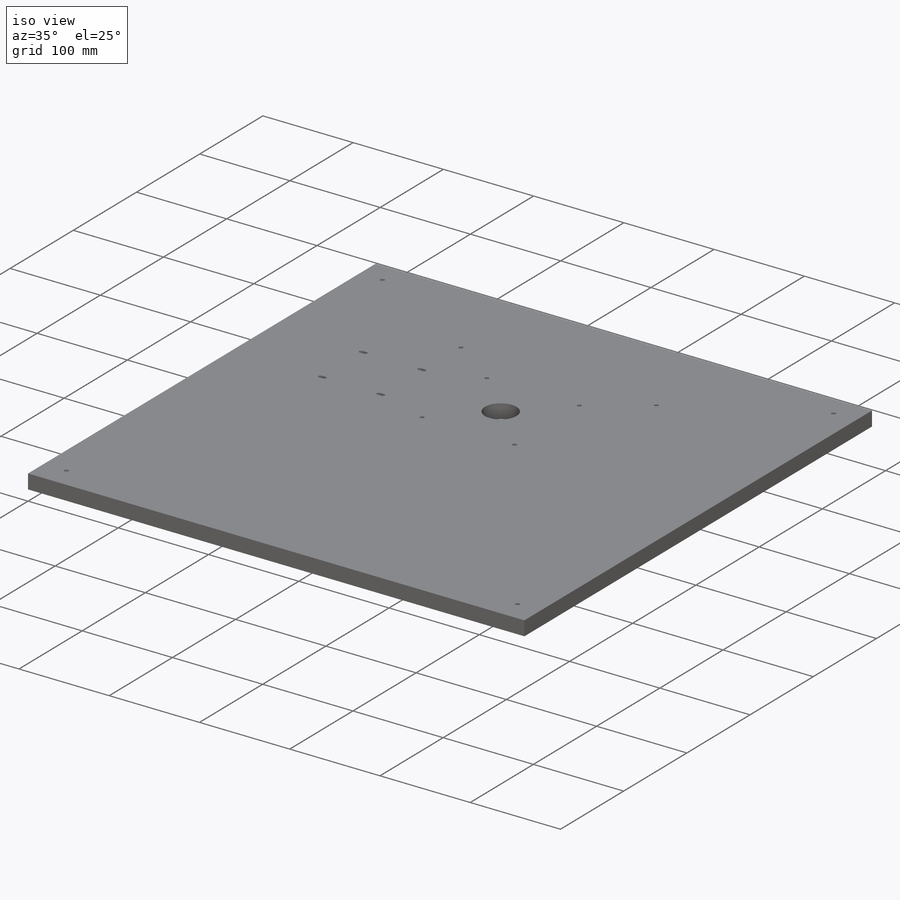
[diagram: iso view]
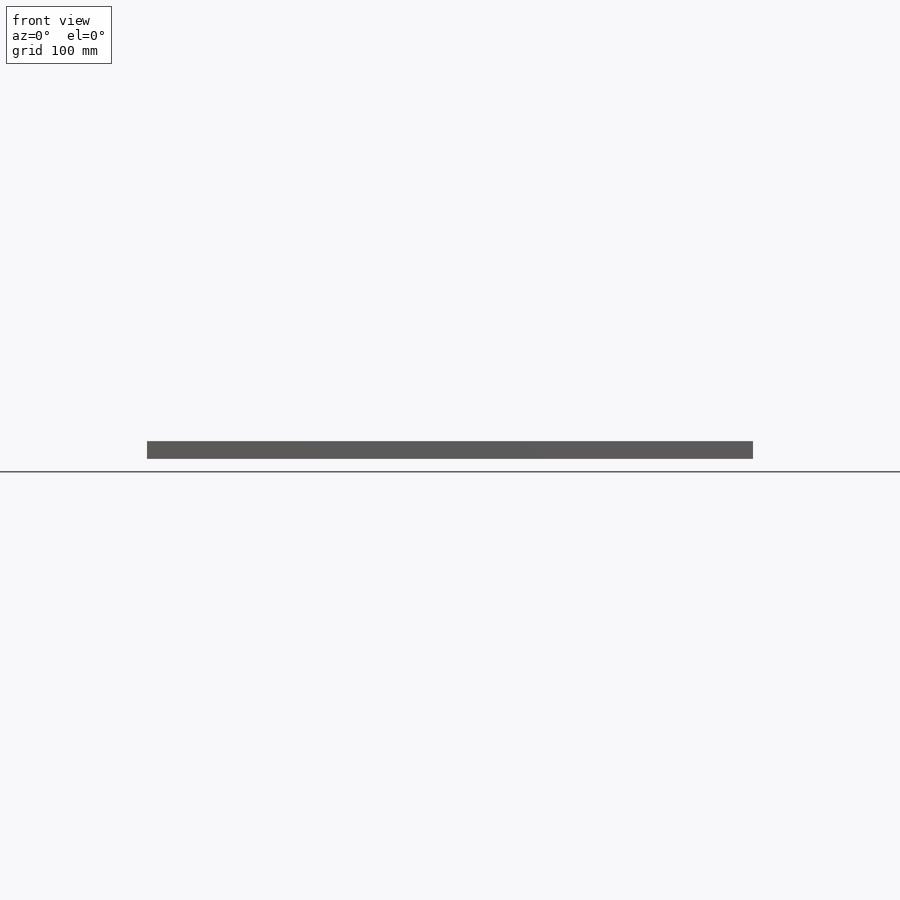
[diagram: front view]
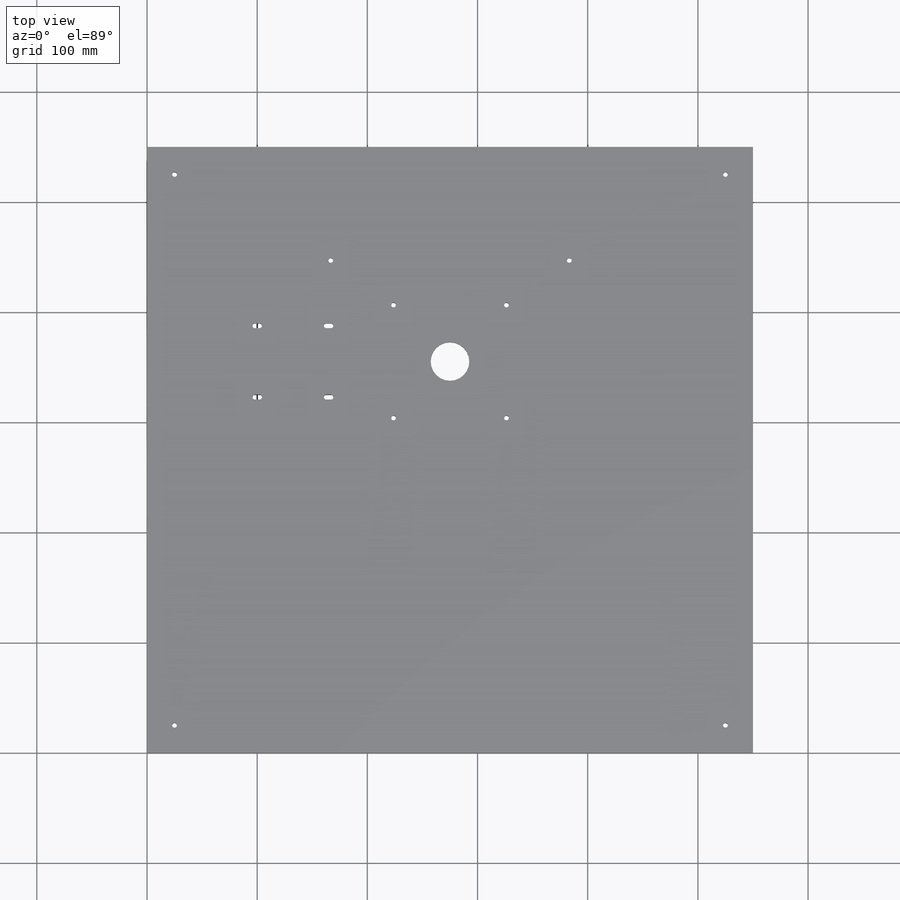
[diagram: top view]
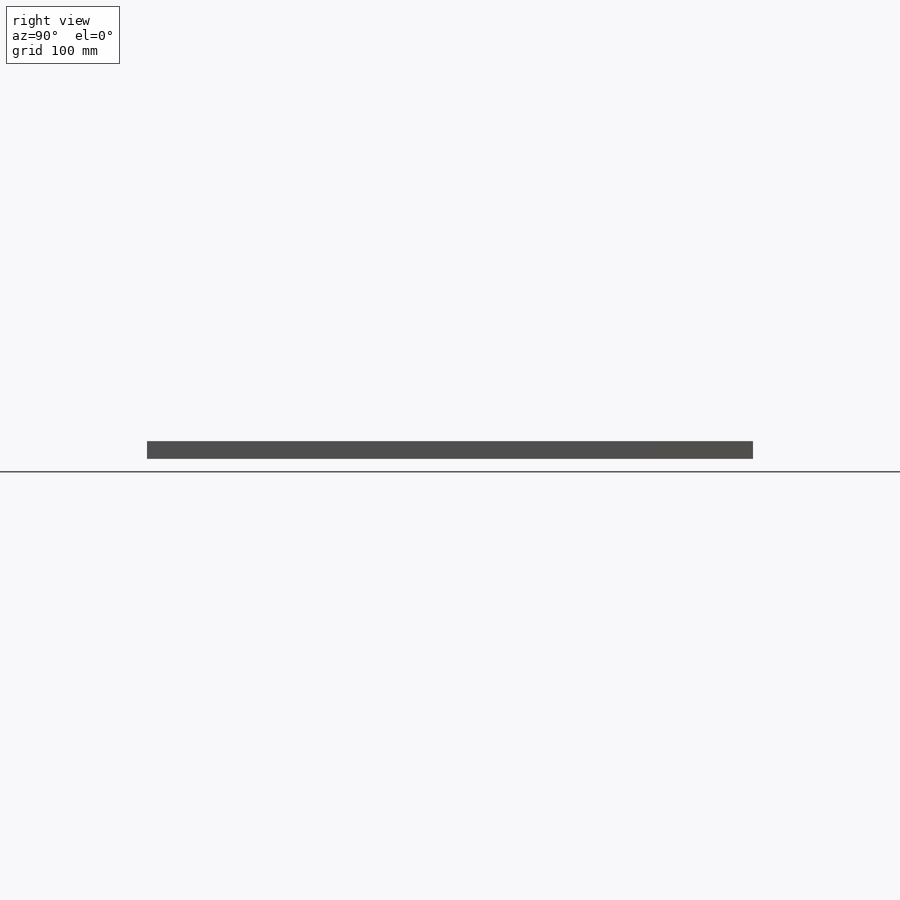
[diagram: right view]
SOLIDWORKS PART (.sldprt)
format: sldprt  version: not decoded by parser v0  size: 225,280 bytes
history: native  units: mm
features: sketch x4, plane x3, cut_extrude x3, material x1, extrude x1 (+9 scaffold rows collapsed)
feature tree (21):
  scaffold x9  (default folders/planes/origin — collapsed)
  material  "Material <sin especificar>"
  plane  "Alzado"
  plane  "Planta"
  plane  "Vista lateral"
  sketch  "Croquis1"  dims[D1=550.0mm D2=550.0mm]
  extrude  "Saliente-Extruir1"  Depth=16mm
  sketch  "Croquis2"  dims[D3=4.3mm D1=25.0mm D2=25.0mm]
  cut_extrude  "Cortar-Extruir1"  [1 undecoded]
  sketch  "Croquis3"  dims[c1.D3=4.3mm c1.D7=4.3mm c1.D8=160.0mm c1.D1=103.0mm c1.D2=216.5mm c1.D4=102.53mm c1.D5=102.53mm c1.D6=40.5mm c2.D8=64.8mm c2.D9=64.8mm c2.D10=58.9mm c2.D11=64.8mm]
  cut_extrude  "Cortar-Extruir3"  [1 undecoded]
  sketch  "Croquis4"  dims[D1=35.0mm]
  cut_extrude  "Cortar-Extruir4"  Depth=40mm
decode coverage: 6 of 8 modeling features carry decoded parameters
note: 2 parameter values undecoded
note: suppression state not decoded; provenance and decode notes live in map.json
